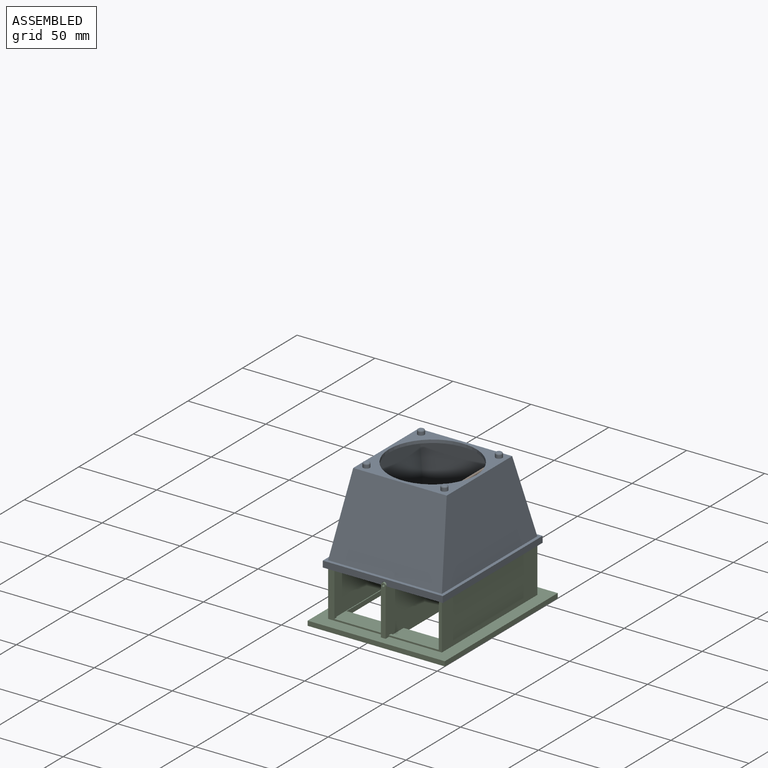
[diagram: assembled view]
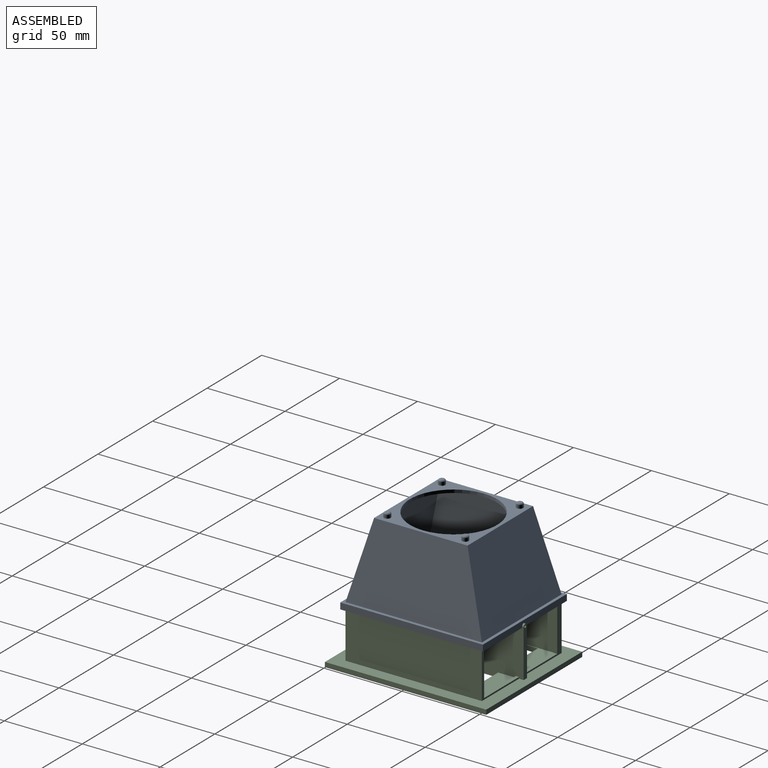
[diagram: assembled view, second angle]
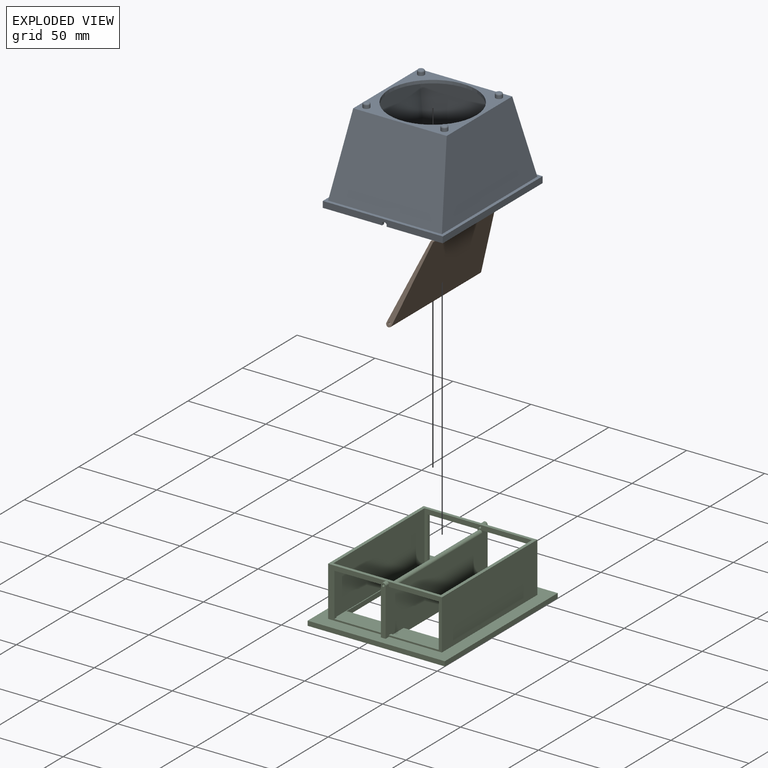
[diagram: exploded view]
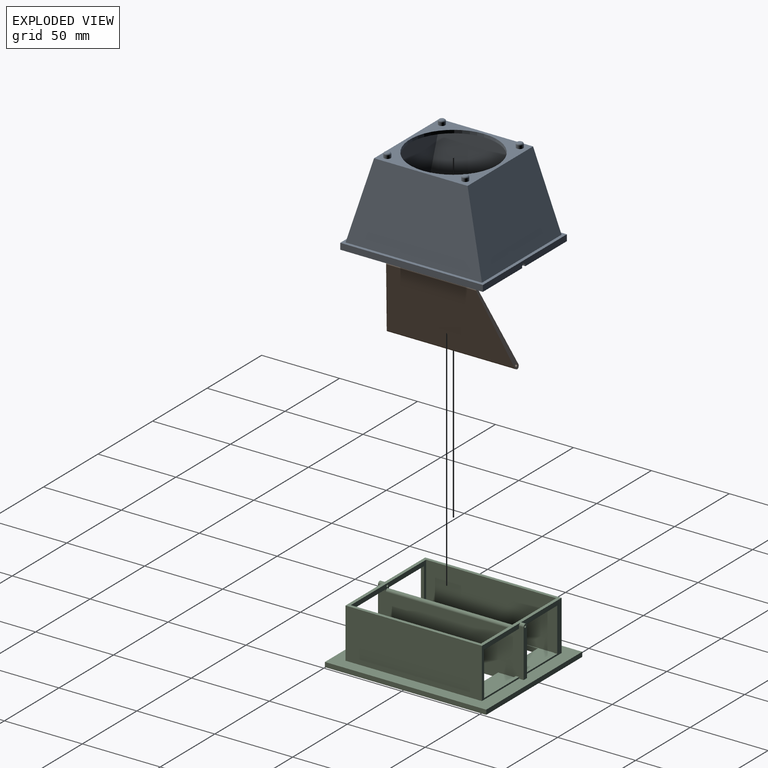
[diagram: exploded view, second angle]
ASSEMBLY  parts=3 mates=2
PART A: 49 faces, bbox 77x91.5x57 mm
  f0: plane 84.39x69.97mm, normal (0,0,1), area 143.6mm2, adj f2,f3,f4,f9,f10,f11,f12,f48
  f1: plane 57.99x57.49mm, normal (0,0,-1), area 871mm2, adj f2,f3,f4,f14,f48
  f2: plane 84.39x48mm, normal (-0.99,0,-0.13), area 3445.8mm2, adj f0,f1,f4,f48
  f3: plane 84.39x48mm, normal (0.99,0,-0.13), area 3445.8mm2, adj f0,f1,f4,f48
  f4: plane 69.97x48mm, normal (0,0.96,-0.27), area 3172.8mm2, adj f0,f1,f2,f3
  f5: plane 87.5x36.67mm, normal (0,0,-1), area 313.7mm2, adj f6,f7,f9,f10,f11,f23,f32,f33
  f6: plane 36.67x2mm, normal (0,1,0), area 72.2mm2, adj f5,f23,f28,f33,f34
  f7: plane 36.67x2mm, normal (0,-1,0), area 72.2mm2, adj f5,f23,f28,f30,f32
  f8: plane 91.5x36mm, normal (0,0,-1), area 319mm2, adj f20,f21,f22,f25,f26,f27,f31,f35
  f9: plane 69x2mm, normal (0,1,0), area 137.7mm2, adj f0,f5,f10,f12,f13,f33
  f10: plane 83.5x2mm, normal (1,0,0), area 167mm2, adj f0,f5,f9,f11
  f11: plane 69x2mm, normal (0,-1,0), area 137.7mm2, adj f0,f5,f10,f12,f13,f32
  f12: plane 83.5x2mm, normal (-1,0,0), area 167mm2, adj f0,f9,f11,f13
  f13: plane 87.5x34.67mm, normal (0,0,-1), area 305.7mm2, adj f9,f11,f12,f20,f21,f22,f32,f33
  f14: cylinder r=28mm len=56mm, axis (0,0,-1), area 351.9mm2, adj f1,f15
  f15: plane 60x60mm, normal (0,0,1), area 1080.2mm2, adj f14,f16,f17,f18,f19,f36,f38,f40
  f16: plane 73x50mm, normal (0,0.96,0.27), area 3448.4mm2, adj f15,f17,f18,f29
  f17: plane 87.5x50mm, normal (0.99,0,0.13), area 3718.5mm2, adj f15,f16,f19,f29
  f18: plane 87.5x50mm, normal (-0.99,0,0.13), area 3718.5mm2, adj f15,f16,f19,f29
  f19: plane 73x50mm, normal (0,-0.96,0.27), area 3448.4mm2, adj f15,f17,f18,f29
  f20: plane 34.67x2mm, normal (0,1,0), area 68.2mm2, adj f8,f13,f21,f33,f35
  f21: plane 87.5x2mm, normal (-1,0,0), area 175mm2, adj f8,f13,f20,f22
  f22: plane 34.67x2mm, normal (0,-1,0), area 68.2mm2, adj f8,f13,f21,f31,f32
  f23: plane 87.5x2mm, normal (1,0,0), area 175mm2, adj f5,f6,f7,f28
  f24: plane 91.5x4mm, normal (-1,0,0), area 366mm2, adj f25,f27,f28,f29
  f25: plane 77x4mm, normal (0,-1,0), area 302.2mm2, adj f8,f24,f26,f28,f29,f33,f34,f35
  f26: plane 91.5x4mm, normal (1,0,0), area 366mm2, adj f8,f25,f27,f29
  f27: plane 77x4mm, normal (0,1,0), area 302.2mm2, adj f8,f24,f26,f28,f29,f30,f31,f32
  f28: plane 91.5x38mm, normal (0,0,-1), area 327mm2, adj f6,f7,f23,f24,f25,f27,f30,f34
  f29: plane 91.5x77mm, normal (0,0,1), area 658mm2, adj f16,f17,f18,f19,f24,f25,f26,f27
  f30: plane 2x0.75mm, normal (1,0,0), area 1.5mm2, adj f7,f27,f28,f32
  f31: plane 2x0.75mm, normal (-1,0,0), area 1.5mm2, adj f8,f22,f27,f32
  f32: cylinder r=1.5mm len=4mm, axis (0,-1,0), area 12.9mm2, adj f5,f7,f11,f13,f22,f27,f30,f31
  f33: cylinder r=1.5mm len=4mm, axis (0,-1,0), area 12.9mm2, adj f5,f6,f9,f13,f20,f25,f34,f35
  f34: plane 2x0.75mm, normal (1,0,0), area 1.5mm2, adj f6,f25,f28,f33
  f35: plane 2x0.75mm, normal (-1,0,0), area 1.5mm2, adj f8,f20,f25,f33
  f36: cylinder r=2.12mm len=4.25mm, axis (0,0,-1), area 26.7mm2, adj f15,f46
  f37: plane 2.25x2.25mm, normal (0,0,1), area 4mm2, adj f46
  f38: cylinder r=2.12mm len=4.25mm, axis (0,0,-1), area 26.7mm2, adj f15,f45
  f39: plane 2.25x2.25mm, normal (0,0,1), area 4mm2, adj f45
  f40: cylinder r=2.12mm len=4.25mm, axis (0,0,-1), area 26.7mm2, adj f15,f44
  f41: plane 2.25x2.25mm, normal (0,0,1), area 4mm2, adj f44
  f42: cylinder r=2.12mm len=4.25mm, axis (0,0,-1), area 26.7mm2, adj f15,f47
  f43: plane 2.25x2.25mm, normal (0,0,1), area 4mm2, adj f47
  f44: torus R=1.12mm, axis (0,0,1), area 17.4mm2, adj f40,f41
  f45: torus R=1.12mm, axis (0,0,1), area 17.4mm2, adj f38,f39
  f46: torus R=1.12mm, axis (0,0,1), area 17.4mm2, adj f36,f37
  f47: torus R=1.12mm, axis (0,0,1), area 17.4mm2, adj f42,f43
  f48: plane 69.97x48mm, normal (0,-0.96,-0.27), area 3172.8mm2, adj f0,f1,f2,f3
PART B: 10 faces, bbox 83.1x3.5x54.1 mm
  f0: plane 57.5x0.03mm, normal (0,0,1), area 1.6mm2, adj f1,f2,f6,f7
  f1: plane 54.07x12.82mm, normal (-0.97,0,0.23), area 135.2mm2, adj f0,f3,f4,f5,f6,f7,f8,f9
  f2: plane 54.07x12.82mm, normal (0.97,0,0.23), area 135.2mm2, adj f0,f3,f4,f5,f6,f7,f8,f9
  f3: cylinder r=0.75mm len=82.29mm, axis (-1,0,0), area 386.1mm2, adj f1,f2
  f4: plane 82.16x51.48mm, normal (0,1,0.02), area 3604.5mm2, adj f1,f2,f7,f9
  f5: plane 82.16x51.48mm, normal (0,-1,0.02), area 3604.5mm2, adj f1,f2,f6,f8
  f6: cylinder r=0.75mm len=57.85mm, axis (1,0,0), area 67.1mm2, adj f0,f1,f2,f5
  f7: cylinder r=0.75mm len=57.85mm, axis (-1,0,0), area 67.1mm2, adj f0,f1,f2,f4
  f8: cylinder r=1.75mm len=83mm, axis (-1,0,0), area 227.3mm2, adj f1,f2,f5,f9
  f9: cylinder r=1.75mm len=83mm, axis (1,0,0), area 227.3mm2, adj f1,f2,f4,f8
PART C: 46 faces, bbox 88x103.5x35 mm
  f0: plane 93.5x33.5mm, normal (1,0,0), area 2773mm2, adj f1,f2,f3,f4,f5,f6,f7,f12
  f1: plane 32x1mm, normal (0,-1,0), area 32mm2, adj f0,f17,f36,f45
  f2: plane 69x32mm, normal (0,-1,0), area 296.2mm2, adj f0,f17,f18,f19,f20,f25,f26,f33
  f3: plane 32x1mm, normal (0,1,0), area 32mm2, adj f0,f17,f32,f45
  f4: plane 69x32mm, normal (0,1,0), area 296.2mm2, adj f0,f17,f18,f19,f20,f25,f27,f28
  f5: plane 103.5x88mm, normal (0,0,1), area 2702.5mm2, adj f0,f6,f7,f8,f9,f10,f11,f13
  f6: plane 35.5x32mm, normal (0,1,0), area 192.5mm2, adj f0,f5,f15,f17,f19,f23,f36,f37
  f7: plane 35.5x32mm, normal (0,-1,0), area 192.5mm2, adj f0,f5,f15,f17,f19,f24,f31,f32
  f8: plane 103.5x3mm, normal (-1,0,0), area 310.5mm2, adj f5,f9,f11,f12
  f9: plane 88x3mm, normal (0,-1,0), area 264mm2, adj f5,f8,f10,f12
  f10: plane 103.5x3mm, normal (1,0,0), area 310.5mm2, adj f5,f9,f11,f12
  f11: plane 88x3mm, normal (0,1,0), area 264mm2, adj f5,f8,f10,f12
  f12: plane 103.5x88mm, normal (0,0,-1), area 5172.3mm2, adj f0,f8,f9,f10,f11,f20,f38,f39
  f13: plane 87.5x32mm, normal (-1,0,0), area 2800mm2, adj f5,f14,f16,f19
  f14: plane 37.5x32mm, normal (0,1,0), area 256.5mm2, adj f5,f13,f19,f20,f23,f33,f34,f35
  f15: plane 87.5x32mm, normal (1,0,0), area 2800mm2, adj f5,f6,f7,f19
  f16: plane 37.5x32mm, normal (0,-1,0), area 256.5mm2, adj f5,f13,f19,f20,f24,f28,f29,f30
  f17: plane 87.5x32mm, normal (-1,0,0), area 2784mm2, adj f1,f2,f3,f4,f6,f7,f19,f31
  f18: plane 83.5x32mm, normal (1,0,0), area 2672mm2, adj f2,f4,f19,f41
  f19: plane 87.5x73mm, normal (0,0,1), area 626mm2, adj f2,f4,f6,f7,f13,f14,f15,f16
  f20: plane 93.5x33.5mm, normal (-1,0,0), area 2772.7mm2, adj f2,f4,f5,f12,f14,f16,f21,f22
  f21: plane 32x3mm, normal (0,-1,0), area 93.3mm2, adj f0,f5,f20,f24,f27
  f22: plane 32x3mm, normal (0,1,0), area 93.3mm2, adj f0,f5,f20,f23,f26
  f23: cylinder r=1.5mm len=3mm, axis (0,-1,0), area 14.1mm2, adj f0,f6,f14,f20,f22
  f24: cylinder r=1.5mm len=3mm, axis (0,1,0), area 14.1mm2, adj f0,f7,f16,f20,f21
  f25: cylinder r=1.5mm len=83.5mm, axis (0,-1,0), area 393.5mm2, adj f0,f2,f4,f20
  f26: cylinder r=0.75mm len=5mm, axis (0,-1,0), area 23.6mm2, adj f2,f22
  f27: cylinder r=0.75mm len=5mm, axis (0,-1,0), area 23.6mm2, adj f4,f21
  f28: plane 32x2mm, normal (0,0,-1), area 64mm2, adj f4,f16,f20,f29
  f29: plane 28x2mm, normal (1,0,0), area 56mm2, adj f4,f16,f28,f30
  f30: plane 32x2mm, normal (0,0,1), area 64mm2, adj f4,f16,f20,f29
  f31: plane 32x2mm, normal (0,0,-1), area 64mm2, adj f0,f4,f7,f17
  f32: plane 32x2mm, normal (0,0,1), area 64mm2, adj f0,f3,f7,f17
  f33: plane 32x2mm, normal (0,0,1), area 64mm2, adj f2,f14,f20,f34
  f34: plane 28x2mm, normal (1,0,0), area 56mm2, adj f2,f14,f33,f35
  f35: plane 32x2mm, normal (0,0,-1), area 64mm2, adj f2,f14,f20,f34
  f36: plane 32x2mm, normal (0,0,1), area 64mm2, adj f0,f1,f6,f17
  f37: plane 32x2mm, normal (0,0,-1), area 64mm2, adj f0,f2,f6,f17
  f38: plane 33.5x3mm, normal (0,1,0), area 100.5mm2, adj f12,f20,f39,f41
  f39: plane 60.5x3mm, normal (1,0,0), area 181.5mm2, adj f12,f38,f40,f41
  f40: plane 33.5x3mm, normal (0,-1,0), area 100.5mm2, adj f12,f20,f39,f41
  f41: plane 83.5x34mm, normal (0,0,1), area 812.2mm2, adj f2,f4,f18,f20,f38,f39,f40
  f42: plane 31.5x3mm, normal (0,-1,0), area 94.5mm2, adj f0,f12,f43,f45
  f43: plane 60.6x3mm, normal (-1,0,0), area 181.8mm2, adj f12,f42,f44,f45
  f44: plane 31.5x3mm, normal (0,1,0), area 94.5mm2, adj f0,f12,f43,f45
  f45: plane 83.5x32mm, normal (0,0,1), area 763.1mm2, adj f0,f1,f3,f17,f42,f43,f44
PLACE A t=(-41.02,-145.5,11.74)mm
PLACE B rot(axis=(0.18,0.18,0.97),92deg) t=(-42.48,-187.12,8.78)mm
PLACE C t=(-40.02,-145.5,-23.26)mm fixed
MATE fastened C.f19 <-> A.f13  axis (0,0,1) through (-4.52,-101.75,11.74)mm
MATE revolute B.f3 <-> C.f26  axis (0,-1,0) through (-40.02,-187.25,10.24)mm
